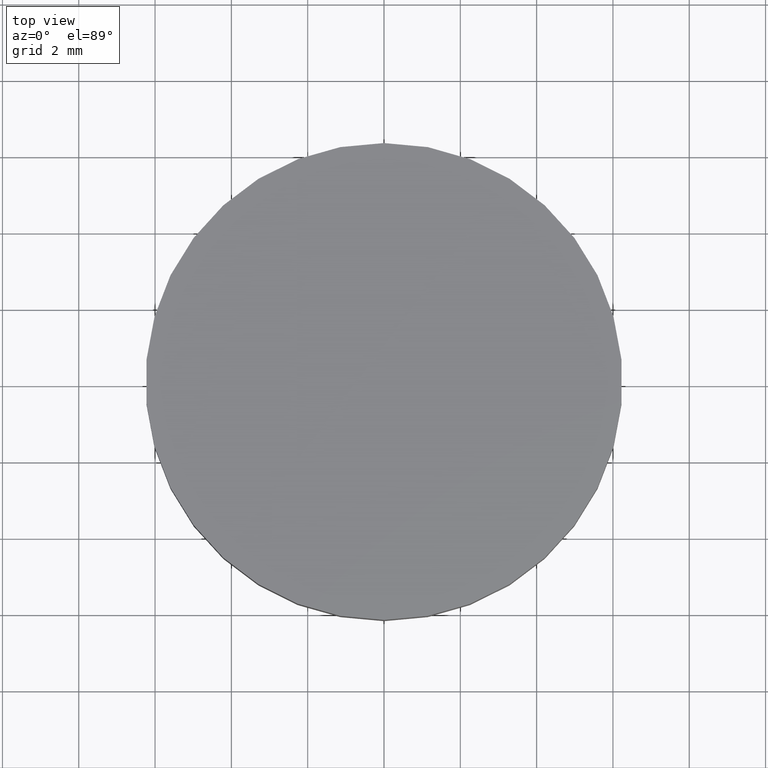
[diagram: clean part render]
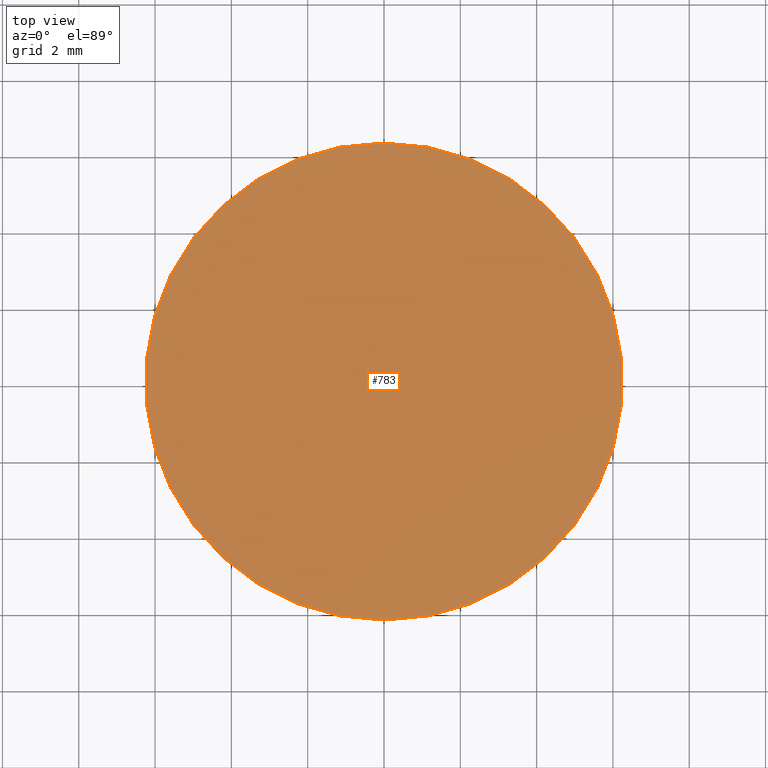
[diagram: same view with one face highlighted and labeled with its STEP entity id]
A machine part, top view. The second image highlights one B-rep face of the part: STEP entity #783.
In plain terms, the highlighted planar face has unit normal (0, 0, 1).
Its self-contained STEP definition (entity closure, byte-faithful):
#45 = CARTESIAN_POINT ( 'NONE',  ( 0.000000000000000000, 0.000000000000000000, 7.500000000000000000 ) ) ;
#57 = CIRCLE ( 'NONE', #371, 6.250000000000000000 ) ;
#125 = AXIS2_PLACEMENT_3D ( 'NONE', #45, #799, #906 ) ;
#134 = CARTESIAN_POINT ( 'NONE',  ( 7.654042494670957606E-16, -6.250000000000000000, 7.500000000000000000 ) ) ;
#162 = CIRCLE ( 'NONE', #458, 6.250000000000000000 ) ;
#179 = DIRECTION ( 'NONE',  ( 0.000000000000000000, 1.000000000000000000, 0.000000000000000000 ) ) ;
#275 = ORIENTED_EDGE ( 'NONE', *, *, #395, .F. ) ;
#348 = EDGE_LOOP ( 'NONE', ( #275, #957 ) ) ;
#371 = AXIS2_PLACEMENT_3D ( 'NONE', #599, #930, #179 ) ;
#395 = EDGE_CURVE ( 'NONE', #850, #862, #57, .T. ) ;
#458 = AXIS2_PLACEMENT_3D ( 'NONE', #713, #813, #1053 ) ;
#599 = CARTESIAN_POINT ( 'NONE',  ( 0.000000000000000000, 0.000000000000000000, 7.500000000000000000 ) ) ;
#628 = EDGE_CURVE ( 'NONE', #862, #850, #162, .T. ) ;
#713 = CARTESIAN_POINT ( 'NONE',  ( 0.000000000000000000, 0.000000000000000000, 7.500000000000000000 ) ) ;
#783 = ADVANCED_FACE ( 'NONE', ( #886 ), #892, .T. ) ;
#799 = DIRECTION ( 'NONE',  ( 0.000000000000000000, 0.000000000000000000, 1.000000000000000000 ) ) ;
#813 = DIRECTION ( 'NONE',  ( 0.000000000000000000, 0.000000000000000000, -1.000000000000000000 ) ) ;
#850 = VERTEX_POINT ( 'NONE', #1067 ) ;
#862 = VERTEX_POINT ( 'NONE', #134 ) ;
#886 = FACE_OUTER_BOUND ( 'NONE', #348, .T. ) ;
#892 = PLANE ( 'NONE',  #125 ) ;
#906 = DIRECTION ( 'NONE',  ( 1.000000000000000000, 0.000000000000000000, 0.000000000000000000 ) ) ;
#930 = DIRECTION ( 'NONE',  ( 0.000000000000000000, 0.000000000000000000, -1.000000000000000000 ) ) ;
#957 = ORIENTED_EDGE ( 'NONE', *, *, #628, .F. ) ;
#1053 = DIRECTION ( 'NONE',  ( 0.000000000000000000, 1.000000000000000000, 0.000000000000000000 ) ) ;
#1067 = CARTESIAN_POINT ( 'NONE',  ( 0.000000000000000000, 6.250000000000000000, 7.500000000000000000 ) ) ;